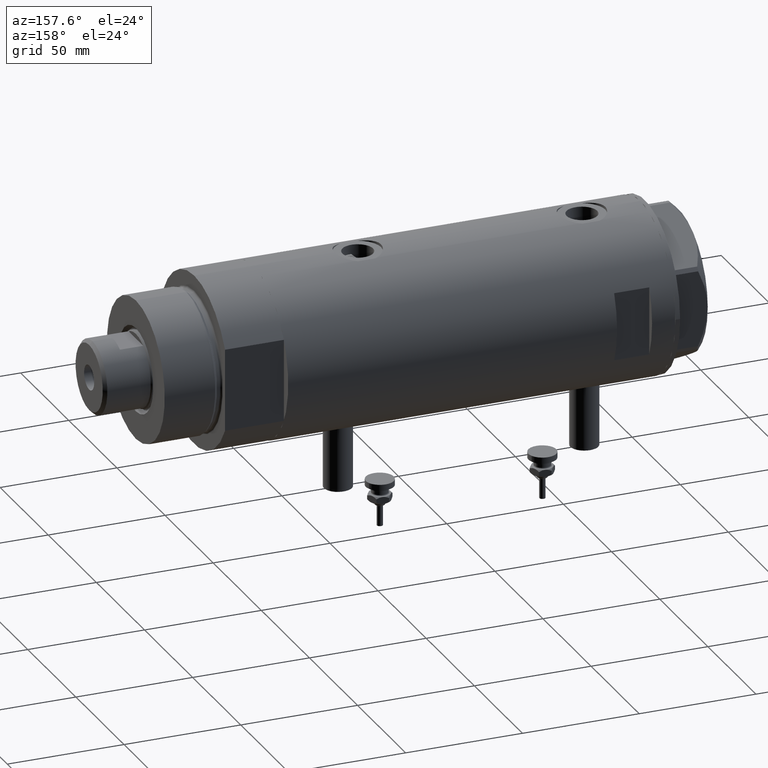
[diagram: clean part render]
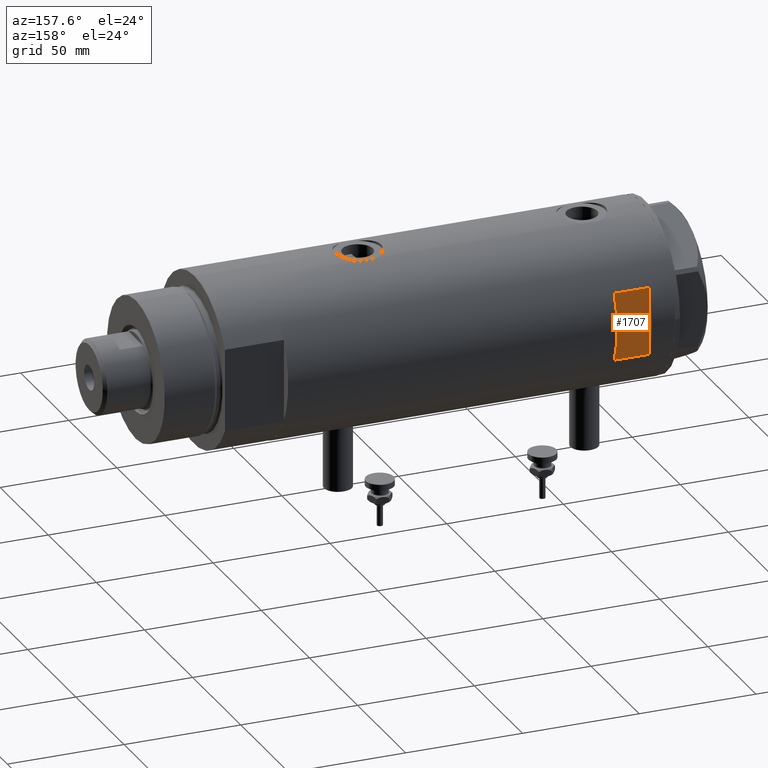
[diagram: same view with one face highlighted and labeled with its STEP entity id]
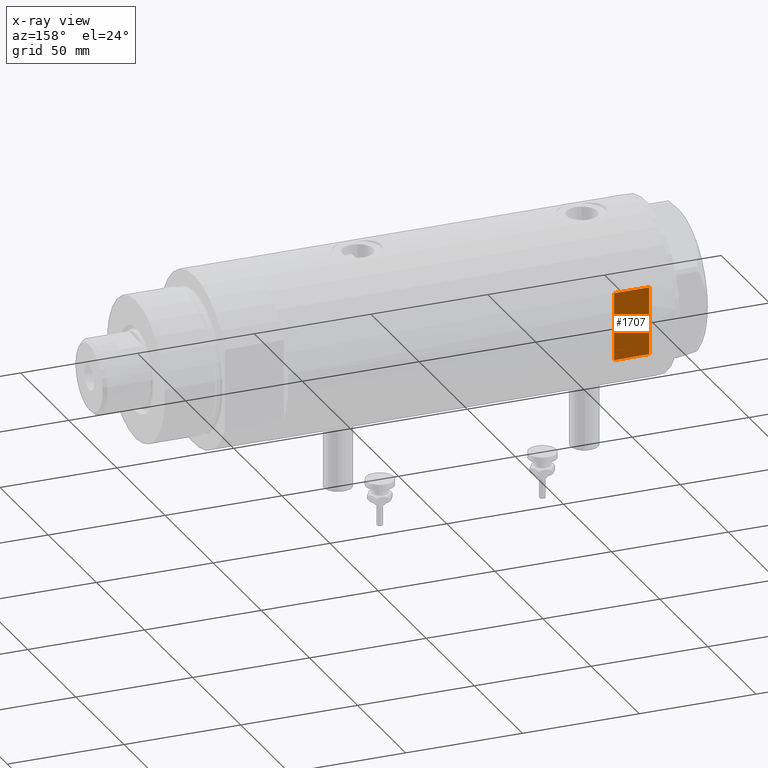
[diagram: x-ray of the same camera — body ghosted, the highlighted face saturated]
A machine part, auxiliary view. The second image highlights one B-rep face of the part: STEP entity #1707.
The next image is the same camera in x-ray: the body ghosted, the highlighted face saturated — about 0% of this face is hidden behind the body in this view.
In plain terms, the highlighted planar face has unit normal (0, -1, -0).
Its self-contained STEP definition (entity closure, byte-faithful):
#185 = DIRECTION ( 'NONE',  ( -0.000000000000000000, -0.000000000000000000, -1.000000000000000000 ) ) ;
#193 = CARTESIAN_POINT ( 'NONE',  ( -36.50000000000000000, 33.50000000000000000, 72.89999999999999147 ) ) ;
#350 = VERTEX_POINT ( 'NONE', #4591 ) ;
#504 = VECTOR ( 'NONE', #185, 1000.000000000000000 ) ;
#646 = DIRECTION ( 'NONE',  ( 1.000000000000000000, -0.000000000000000000, -0.000000000000000000 ) ) ;
#1001 = DIRECTION ( 'NONE',  ( 0.000000000000000000, -1.000000000000000000, -0.000000000000000000 ) ) ;
#1194 = LINE ( 'NONE', #193, #3962 ) ;
#1322 = DIRECTION ( 'NONE',  ( 0.000000000000000000, 0.000000000000000000, 1.000000000000000000 ) ) ;
#1380 = VERTEX_POINT ( 'NONE', #2971 ) ;
#1705 = CARTESIAN_POINT ( 'NONE',  ( -36.50000000000000000, 33.50000000000000000, 57.89999999999999147 ) ) ;
#1707 = ADVANCED_FACE ( 'NONE', ( #3722 ), #2454, .F. ) ;
#1761 = VECTOR ( 'NONE', #1322, 1000.000000000000000 ) ;
#1789 = DIRECTION ( 'NONE',  ( 1.000000000000000000, -0.000000000000000000, -0.000000000000000000 ) ) ;
#1791 = ORIENTED_EDGE ( 'NONE', *, *, #4556, .T. ) ;
#2091 = CARTESIAN_POINT ( 'NONE',  ( 14.49137674618942739, 33.50000000000000000, -82.90000000000000568 ) ) ;
#2111 = CARTESIAN_POINT ( 'NONE',  ( -14.49137674618942917, 33.50000000000000000, 57.89999999999999147 ) ) ;
#2395 = CARTESIAN_POINT ( 'NONE',  ( -14.49137674618942739, 33.50000000000000000, 72.89999999999999147 ) ) ;
#2401 = CARTESIAN_POINT ( 'NONE',  ( -36.50000000000000000, 33.50000000000000000, 72.89999999999999147 ) ) ;
#2454 = PLANE ( 'NONE',  #3541 ) ;
#2647 = ORIENTED_EDGE ( 'NONE', *, *, #4555, .F. ) ;
#2971 = CARTESIAN_POINT ( 'NONE',  ( 14.49137674618942917, 33.50000000000000000, 57.89999999999999147 ) ) ;
#3146 = ORIENTED_EDGE ( 'NONE', *, *, #4075, .T. ) ;
#3302 = EDGE_LOOP ( 'NONE', ( #3399, #2647, #1791, #3146 ) ) ;
#3399 = ORIENTED_EDGE ( 'NONE', *, *, #4481, .T. ) ;
#3541 = AXIS2_PLACEMENT_3D ( 'NONE', #2401, #1001, #4250 ) ;
#3722 = FACE_OUTER_BOUND ( 'NONE', #3302, .T. ) ;
#3958 = VERTEX_POINT ( 'NONE', #2111 ) ;
#3962 = VECTOR ( 'NONE', #646, 1000.000000000000000 ) ;
#4075 = EDGE_CURVE ( 'NONE', #5368, #350, #1194, .T. ) ;
#4250 = DIRECTION ( 'NONE',  ( 0.000000000000000000, 0.000000000000000000, -1.000000000000000000 ) ) ;
#4437 = LINE ( 'NONE', #2091, #504 ) ;
#4481 = EDGE_CURVE ( 'NONE', #350, #1380, #4437, .T. ) ;
#4555 = EDGE_CURVE ( 'NONE', #3958, #1380, #5018, .T. ) ;
#4556 = EDGE_CURVE ( 'NONE', #3958, #5368, #4580, .T. ) ;
#4580 = LINE ( 'NONE', #5436, #1761 ) ;
#4591 = CARTESIAN_POINT ( 'NONE',  ( 14.49137674618942739, 33.50000000000000000, 72.89999999999999147 ) ) ;
#4909 = VECTOR ( 'NONE', #1789, 1000.000000000000000 ) ;
#5018 = LINE ( 'NONE', #1705, #4909 ) ;
#5368 = VERTEX_POINT ( 'NONE', #2395 ) ;
#5436 = CARTESIAN_POINT ( 'NONE',  ( -14.49137674618942739, 33.50000000000000000, -82.90000000000000568 ) ) ;